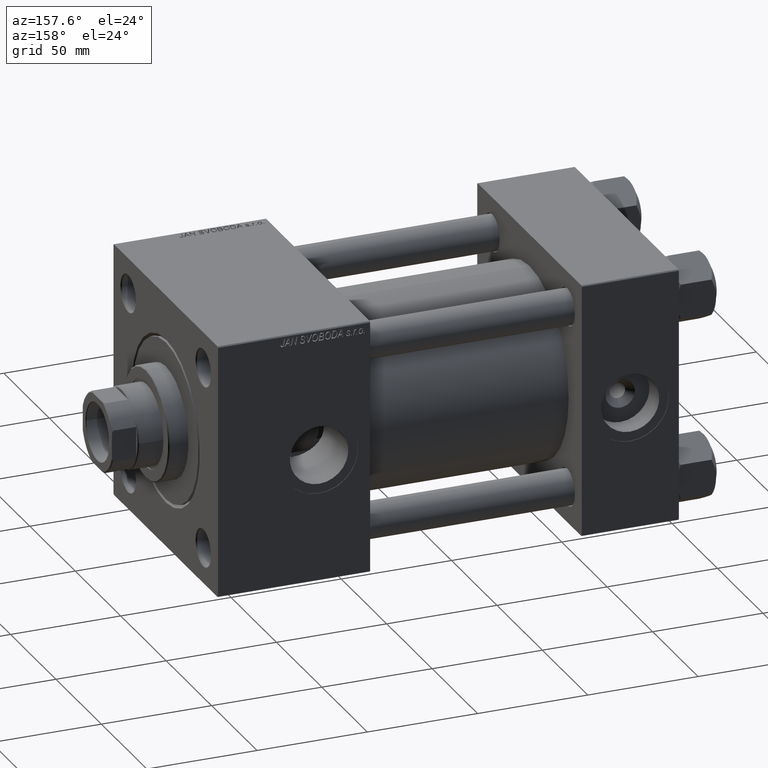
[diagram: clean part render]
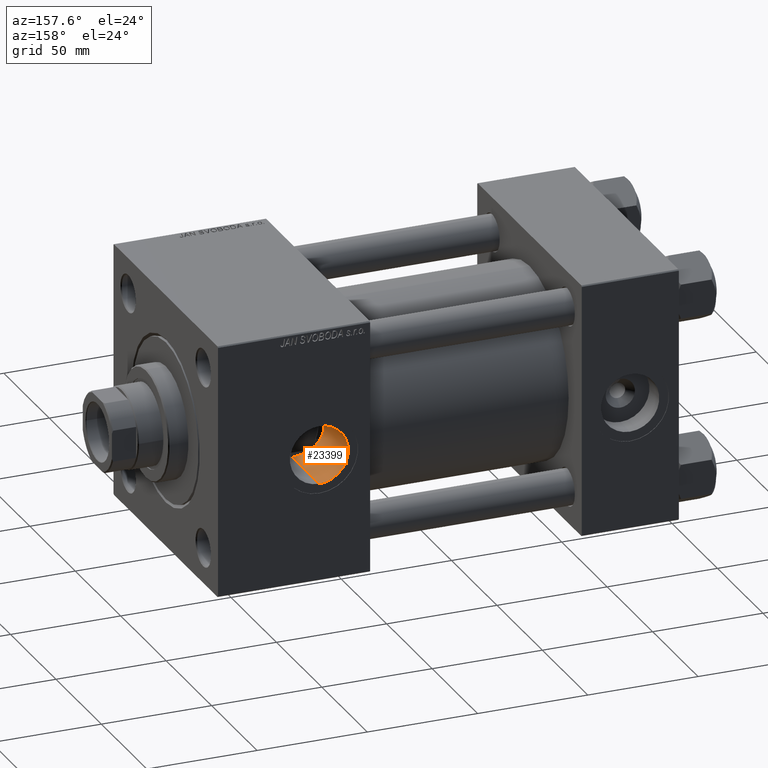
[diagram: same view with one face highlighted and labeled with its STEP entity id]
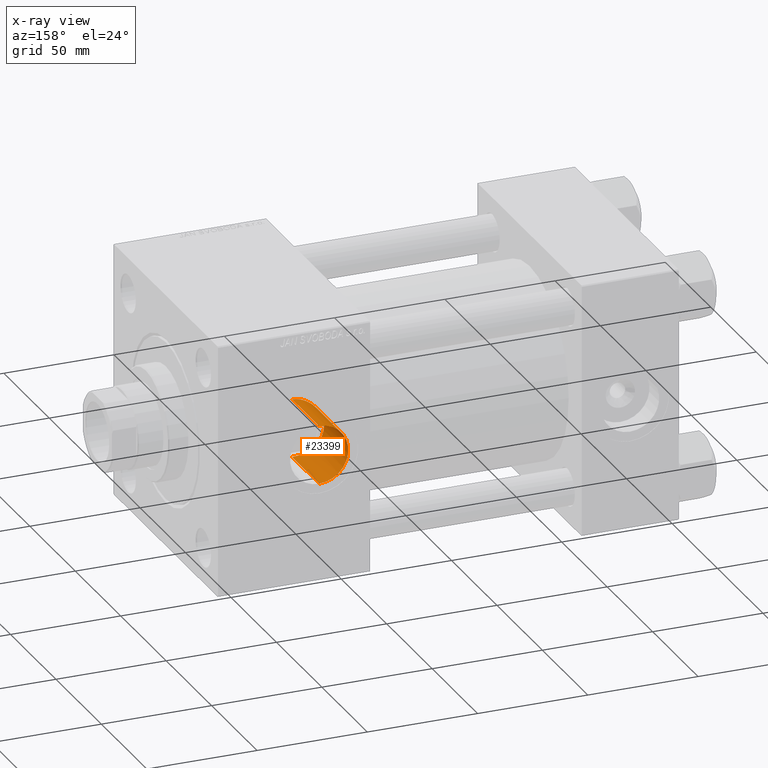
[diagram: x-ray of the same camera — body ghosted, the highlighted face saturated]
A machine part, auxiliary view. The second image highlights one B-rep face of the part: STEP entity #23399.
The next image is the same camera in x-ray: the body ghosted, the highlighted face saturated — about 0% of this face is hidden behind the body in this view.
In plain terms, the highlighted cylindrical surface (edge-blend (fillet) strip) has radius 13.22 mm, axis along (0, 1, 0).
Its self-contained STEP definition (entity closure, byte-faithful):
#34 = CARTESIAN_POINT ( 'NONE',  ( 153.0473731174651277, 29.22679903910048793, 8.743617048434080274 ) ) ;
#288 = CARTESIAN_POINT ( 'NONE',  ( 162.9999999999999716, 27.48602554026317790, 13.22000000000001307 ) ) ;
#538 = CARTESIAN_POINT ( 'NONE',  ( 150.2143555301103390, 30.31385640335704323, -3.472349718865143320 ) ) ;
#798 = CARTESIAN_POINT ( 'NONE',  ( 162.5645521900201516, 27.48602554026317080, -13.22000000000000952 ) ) ;
#1056 = CARTESIAN_POINT ( 'NONE',  ( 160.8076220742238434, 27.57007713559720230, 13.04414953179170311 ) ) ;
#1487 = EDGE_CURVE ( 'NONE', #47697, #17080, #26156, .T. ) ;
#3964 = CARTESIAN_POINT ( 'NONE',  ( 151.1336472115975482, 29.93658805510088072, 5.891087304201775510 ) ) ;
#4228 = CARTESIAN_POINT ( 'NONE',  ( 152.5032471323608263, 29.41882578186302410, -8.081938258306628597 ) ) ;
#4479 = CARTESIAN_POINT ( 'NONE',  ( 161.2542282647191598, 27.53795097526183966, -13.11158184888303602 ) ) ;
#4505 = EDGE_LOOP ( 'NONE', ( #38175, #40845, #31951, #23772 ) ) ;
#4728 = CARTESIAN_POINT ( 'NONE',  ( 149.7801175785925523, 30.49994903642796729, -0.4395225290285969533 ) ) ;
#4983 = CARTESIAN_POINT ( 'NONE',  ( 158.7068964544951939, 27.80809078274621271, 12.53370710140858613 ) ) ;
#6960 = AXIS2_PLACEMENT_3D ( 'NONE', #13547, #22180, #22439 ) ;
#7525 = LINE ( 'NONE', #23503, #38523 ) ;
#8146 = CARTESIAN_POINT ( 'NONE',  ( 159.5327437527731149, 27.69092983374395800, 12.78664795889660333 ) ) ;
#8403 = CARTESIAN_POINT ( 'NONE',  ( 151.7879982963804366, 29.68402861147382410, -7.017278994872280684 ) ) ;
#8647 = CARTESIAN_POINT ( 'NONE',  ( 154.2730878933086274, 28.83644685509613836, -9.939442956448859334 ) ) ;
#8892 = CARTESIAN_POINT ( 'NONE',  ( 155.9886200911439289, 28.36413578868933882, 11.21563918299624341 ) ) ;
#9148 = CARTESIAN_POINT ( 'NONE',  ( 149.8891115833080221, 30.45283964616873362, -1.751073242079241199 ) ) ;
#9509 = AXIS2_PLACEMENT_3D ( 'NONE', #41854, #14070, #30065 ) ;
#10918 = DIRECTION ( 'NONE',  ( -0.000000000000000000, 1.000000000000000000, -0.000000000000000000 ) ) ;
#11809 = CARTESIAN_POINT ( 'NONE',  ( 163.0000000000000000, 57.29999999999999716, -13.22000000000001307 ) ) ;
#12058 = CARTESIAN_POINT ( 'NONE',  ( 162.1134150803935654, 27.49685012189993216, 13.19756092916644974 ) ) ;
#12280 = B_SPLINE_CURVE_WITH_KNOTS ( 'NONE', 3,
 ( #44017, #798, #17001, #4479, #28562, #12570, #20183, #32992, #36924, #48970, #13073, #44536, #20429, #8647, #44274, #32754, #4228, #8403, #24123, #36657, #29050, #24626, #538, #40593, #9148, #40346, #4728, #20680, #16753, #36398, #16491, #45032, #25138, #3964, #48729, #19919, #34, #15997, #44779, #32488, #31987, #8892, #28795, #40844, #24875, #4983, #8146, #1056, #47963, #12058, #36152, #288 ),
 .UNSPECIFIED., .F., .F.,
 ( 4, 2, 2, 2, 2, 2, 2, 2, 2, 2, 2, 2, 2, 2, 2, 2, 2, 2, 2, 2, 2, 2, 2, 2, 2, 4 ),
 ( 0.04185456545875306661, 0.04316126087825660623, 0.04446795629776014586, 0.04708134713676722510, 0.04838804255627079942, 0.04969473797577438068, 0.05100143339527795500, 0.05230812881478152931, 0.05492151965378874734, 0.05622821507329234941, 0.05753491049279595149, 0.06014830133180315563, 0.06145499675130676465, 0.06276169217081037366, 0.06406838759031396879, 0.06537508300981756393, 0.06798847384882478195, 0.07060186468783199998, 0.07321525552683921800, 0.07452195094634284089, 0.07582864636584643603, 0.07713534178535005892, 0.07844203720485365405, 0.08105542804386095534, 0.08236212346336455048, 0.08366881888286815949 ),
 .UNSPECIFIED. ) ;
#12570 = CARTESIAN_POINT ( 'NONE',  ( 159.5319641781283622, 27.69083871833037946, -12.78685970456083076 ) ) ;
#12707 = CARTESIAN_POINT ( 'NONE',  ( 163.0000000000000000, 27.48602554026317435, -13.22000000000001307 ) ) ;
#13073 = CARTESIAN_POINT ( 'NONE',  ( 155.9857052652832010, 28.36484899022288531, -11.21384987315752291 ) ) ;
#13547 = CARTESIAN_POINT ( 'NONE',  ( 163.0000000000000000, 57.29999999999999716, 0.000000000000000000 ) ) ;
#14070 = DIRECTION ( 'NONE',  ( -0.000000000000000000, 1.000000000000000000, -0.000000000000000000 ) ) ;
#15934 = EDGE_CURVE ( 'NONE', #44607, #45717, #7525, .T. ) ;
#15997 = CARTESIAN_POINT ( 'NONE',  ( 153.9583286087333249, 28.93355788007936269, 9.654060476841083371 ) ) ;
#16491 = CARTESIAN_POINT ( 'NONE',  ( 149.9521610525348763, 30.42567252313473958, 2.171687124408185454 ) ) ;
#16753 = CARTESIAN_POINT ( 'NONE',  ( 149.8012799658382903, 30.49075770438742694, 0.8676718968637309182 ) ) ;
#17001 = CARTESIAN_POINT ( 'NONE',  ( 162.1283154291222104, 27.49637901534173778, -13.19854020490743451 ) ) ;
#17080 = VERTEX_POINT ( 'NONE', #11809 ) ;
#19161 = EDGE_CURVE ( 'NONE', #17080, #45717, #29523, .T. ) ;
#19919 = CARTESIAN_POINT ( 'NONE',  ( 152.5055155616611557, 29.41799900512065591, 8.085100585392767769 ) ) ;
#20183 = CARTESIAN_POINT ( 'NONE',  ( 158.7047342321350527, 27.80849258881733732, -12.53278253679628662 ) ) ;
#20429 = CARTESIAN_POINT ( 'NONE',  ( 154.9341556027196418, 28.64331541826129524, -10.48301842797575212 ) ) ;
#20680 = CARTESIAN_POINT ( 'NONE',  ( 149.7798833751725454, 30.50005055016961109, 0.4324207619027780058 ) ) ;
#22180 = DIRECTION ( 'NONE',  ( 0.000000000000000000, 1.000000000000000000, 0.000000000000000000 ) ) ;
#22297 = CARTESIAN_POINT ( 'NONE',  ( 163.0000000000000000, 57.29999999999999716, 13.22000000000001307 ) ) ;
#22439 = DIRECTION ( 'NONE',  ( 0.000000000000000000, 0.000000000000000000, 1.000000000000000000 ) ) ;
#23399 = ADVANCED_FACE ( 'NONE', ( #29791 ), #25874, .F. ) ;
#23503 = CARTESIAN_POINT ( 'NONE',  ( 163.0000000000000000, -37.39180658914467159, 13.22000000000001307 ) ) ;
#23772 = ORIENTED_EDGE ( 'NONE', *, *, #15934, .F. ) ;
#24123 = CARTESIAN_POINT ( 'NONE',  ( 151.5656472595185562, 29.76894608984559909, -6.649226455900627109 ) ) ;
#24626 = CARTESIAN_POINT ( 'NONE',  ( 150.4682652175977182, 30.20651436230127374, -4.297603092604088459 ) ) ;
#24875 = CARTESIAN_POINT ( 'NONE',  ( 157.5033240587346768, 28.02747652100599396, 12.03095970967390294 ) ) ;
#25138 = CARTESIAN_POINT ( 'NONE',  ( 150.4677033987410084, 30.20674484256638692, 4.296135475357582223 ) ) ;
#25874 = CYLINDRICAL_SURFACE ( 'NONE', #9509, 13.22000000000001307 ) ;
#26156 = LINE ( 'NONE', #45542, #48202 ) ;
#28562 = CARTESIAN_POINT ( 'NONE',  ( 160.8160925417225258, 27.56935746262541542, -13.04567405714080586 ) ) ;
#28795 = CARTESIAN_POINT ( 'NONE',  ( 156.3543953198621352, 28.27560273858752282, 11.43629410241070588 ) ) ;
#29050 = CARTESIAN_POINT ( 'NONE',  ( 150.9672967035095041, 30.00407358905177801, -5.492612641369686521 ) ) ;
#29523 = CIRCLE ( 'NONE', #6960, 13.22000000000001307 ) ;
#29791 = FACE_OUTER_BOUND ( 'NONE', #4505, .T. ) ;
#30065 = DIRECTION ( 'NONE',  ( 0.000000000000000000, 0.000000000000000000, 1.000000000000000000 ) ) ;
#31951 = ORIENTED_EDGE ( 'NONE', *, *, #19161, .T. ) ;
#31987 = CARTESIAN_POINT ( 'NONE',  ( 155.2808361596560758, 28.54733334668878442, 10.74078768598460520 ) ) ;
#32488 = CARTESIAN_POINT ( 'NONE',  ( 154.9388290811652098, 28.64200260032307099, 10.48659046665410344 ) ) ;
#32754 = CARTESIAN_POINT ( 'NONE',  ( 153.0438086488639442, 29.22803557907762695, -8.739437049842035066 ) ) ;
#32992 = CARTESIAN_POINT ( 'NONE',  ( 157.5048214367274113, 28.02719974335071385, -12.03159586632442490 ) ) ;
#36152 = CARTESIAN_POINT ( 'NONE',  ( 162.5576600780171930, 27.48602554026318856, 13.22000000000002018 ) ) ;
#36398 = CARTESIAN_POINT ( 'NONE',  ( 149.8873024443522013, 30.45361935851584789, 1.736729073545222990 ) ) ;
#36657 = CARTESIAN_POINT ( 'NONE',  ( 151.1542858074938351, 29.92936139373705373, -5.885209454646791016 ) ) ;
#36924 = CARTESIAN_POINT ( 'NONE',  ( 157.1108583995227832, 28.10741642938324958, -11.84364692807676356 ) ) ;
#37551 = CARTESIAN_POINT ( 'NONE',  ( 162.9999999999999716, 27.48602554026317790, 13.22000000000001307 ) ) ;
#38175 = ORIENTED_EDGE ( 'NONE', *, *, #45069, .F. ) ;
#38523 = VECTOR ( 'NONE', #10918, 1000.000000000000000 ) ;
#40346 = CARTESIAN_POINT ( 'NONE',  ( 149.8017463083118059, 30.49055506137071703, -0.8762146220601727542 ) ) ;
#40593 = CARTESIAN_POINT ( 'NONE',  ( 149.9552371504892676, 30.42435429361170307, -2.189278755698946810 ) ) ;
#40844 = CARTESIAN_POINT ( 'NONE',  ( 157.1107550399995887, 28.10745194542969472, 11.84355006586339343 ) ) ;
#40845 = ORIENTED_EDGE ( 'NONE', *, *, #1487, .T. ) ;
#41854 = CARTESIAN_POINT ( 'NONE',  ( 163.0000000000000000, -37.39180658914467159, 0.000000000000000000 ) ) ;
#41870 = DIRECTION ( 'NONE',  ( -0.000000000000000000, 1.000000000000000000, -0.000000000000000000 ) ) ;
#44017 = CARTESIAN_POINT ( 'NONE',  ( 163.0000000000000000, 27.48602554026317435, -13.22000000000001307 ) ) ;
#44274 = CARTESIAN_POINT ( 'NONE',  ( 153.9529951608606666, 28.93523070509821338, -9.649035184034540080 ) ) ;
#44536 = CARTESIAN_POINT ( 'NONE',  ( 155.2766177703966832, 28.54846687087107782, -10.73778964864925989 ) ) ;
#44607 = VERTEX_POINT ( 'NONE', #37551 ) ;
#44779 = CARTESIAN_POINT ( 'NONE',  ( 154.2783375840803330, 28.83486139504595158, 9.944026392801021075 ) ) ;
#45032 = CARTESIAN_POINT ( 'NONE',  ( 150.2123294658001385, 30.31470776430871794, 3.466927598030824953 ) ) ;
#45069 = EDGE_CURVE ( 'NONE', #47697, #44607, #12280, .T. ) ;
#45542 = CARTESIAN_POINT ( 'NONE',  ( 163.0000000000000000, -37.39180658914467159, -13.22000000000001307 ) ) ;
#45717 = VERTEX_POINT ( 'NONE', #22297 ) ;
#47697 = VERTEX_POINT ( 'NONE', #12707 ) ;
#47963 = CARTESIAN_POINT ( 'NONE',  ( 161.2386372780782153, 27.53893847708603104, 13.10950985584734596 ) ) ;
#48202 = VECTOR ( 'NONE', #41870, 1000.000000000000000 ) ;
#48729 = CARTESIAN_POINT ( 'NONE',  ( 151.5493670143524696, 29.77249498464553668, 6.662286344075494249 ) ) ;
#48970 = CARTESIAN_POINT ( 'NONE',  ( 156.3523285978823196, 28.27607477382294832, -11.43513997626963175 ) ) ;